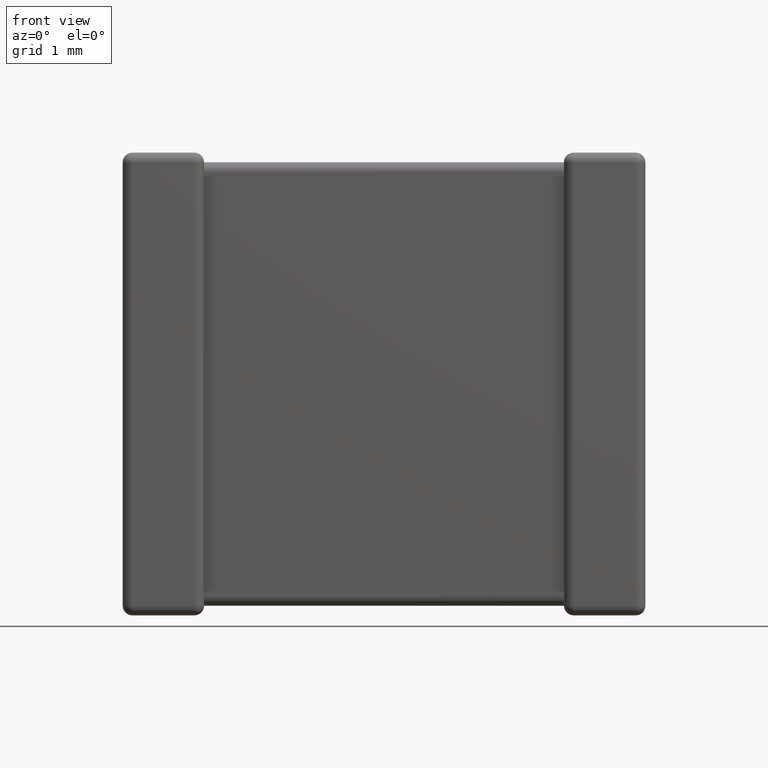
[diagram: clean part render]
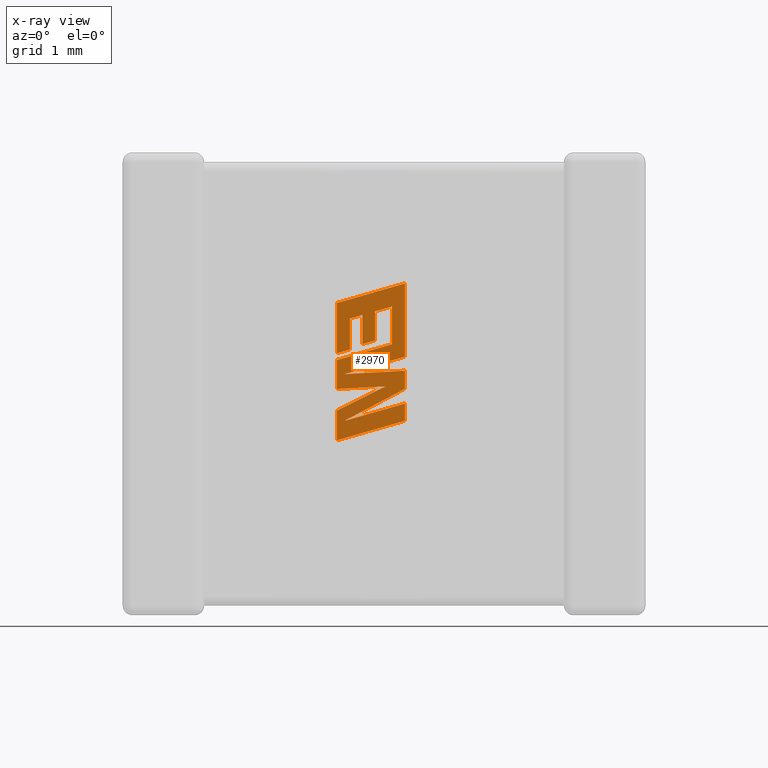
[diagram: x-ray — body ghosted, one internal face saturated and labeled with its STEP entity id]
A machine part, front view, then the same camera in x-ray: the body is ghosted and one INTERNAL B-rep face — a face not visible from any outside direction — is saturated and labeled: STEP entity #2970.
In plain terms, the highlighted planar face has unit normal (0, -1, 0).
Its self-contained STEP definition (entity closure, byte-faithful):
#72 = DIRECTION ( 'NONE',  ( 0.000000000000000000, 0.000000000000000000, 1.000000000000000000 ) ) ;
#74 = VECTOR ( 'NONE', #1894, 1000.000000000000000 ) ;
#94 = LINE ( 'NONE', #4412, #3383 ) ;
#162 = LINE ( 'NONE', #1605, #4665 ) ;
#164 = EDGE_CURVE ( 'NONE', #1717, #3765, #3443, .T. ) ;
#248 = EDGE_CURVE ( 'NONE', #1930, #4588, #1805, .T. ) ;
#261 = VERTEX_POINT ( 'NONE', #4265 ) ;
#313 = VECTOR ( 'NONE', #2080, 1000.000000000000227 ) ;
#323 = EDGE_CURVE ( 'NONE', #4036, #560, #1134, .T. ) ;
#368 = LINE ( 'NONE', #3974, #1432 ) ;
#476 = VERTEX_POINT ( 'NONE', #1944 ) ;
#490 = VERTEX_POINT ( 'NONE', #3371 ) ;
#502 = EDGE_CURVE ( 'NONE', #2121, #1244, #162, .T. ) ;
#522 = VECTOR ( 'NONE', #2669, 1000.000000000000000 ) ;
#560 = VERTEX_POINT ( 'NONE', #3109 ) ;
#596 = VERTEX_POINT ( 'NONE', #1799 ) ;
#769 = CARTESIAN_POINT ( 'NONE',  ( 2.651247545699367159, 2.437679999999999847, -1.937726998119464472 ) ) ;
#830 = CARTESIAN_POINT ( 'NONE',  ( 2.500140458105373664, 2.437679999999999847, -2.342335107203581845 ) ) ;
#838 = CARTESIAN_POINT ( 'NONE',  ( 2.651247545699367159, 2.437679999999999847, -1.937726998119464472 ) ) ;
#889 = ORIENTED_EDGE ( 'NONE', *, *, #3160, .F. ) ;
#928 = ORIENTED_EDGE ( 'NONE', *, *, #2841, .F. ) ;
#946 = CARTESIAN_POINT ( 'NONE',  ( 2.945662692117169357, 2.437679999999999847, -2.193576659344267377 ) ) ;
#949 = CARTESIAN_POINT ( 'NONE',  ( 3.142967740597625959, 2.437679999999999847, -2.236745285315902887 ) ) ;
#987 = AXIS2_PLACEMENT_3D ( 'NONE', #3700, #2187, #3333 ) ;
#1036 = LINE ( 'NONE', #1877, #3601 ) ;
#1052 = EDGE_CURVE ( 'NONE', #1952, #4036, #368, .T. ) ;
#1110 = CARTESIAN_POINT ( 'NONE',  ( 3.294000000000012029, 2.437679999999999847, -3.130290462645080929 ) ) ;
#1134 = LINE ( 'NONE', #1538, #2982 ) ;
#1144 = ORIENTED_EDGE ( 'NONE', *, *, #2048, .F. ) ;
#1241 = DIRECTION ( 'NONE',  ( -0.9617234872620624708, 0.000000000000000000, -0.2740217765953968376 ) ) ;
#1244 = VERTEX_POINT ( 'NONE', #2052 ) ;
#1279 = VECTOR ( 'NONE', #4342, 1000.000000000000227 ) ;
#1343 = CARTESIAN_POINT ( 'NONE',  ( 2.798905294973047297, 2.437679999999999847, -1.894761132410661242 ) ) ;
#1352 = CARTESIAN_POINT ( 'NONE',  ( 2.945662692117169357, 2.437679999999999847, -2.193576659344267377 ) ) ;
#1383 = LINE ( 'NONE', #2805, #4483 ) ;
#1418 = VERTEX_POINT ( 'NONE', #1940 ) ;
#1432 = VECTOR ( 'NONE', #2178, 1000.000000000000000 ) ;
#1455 = VERTEX_POINT ( 'NONE', #769 ) ;
#1533 = DIRECTION ( 'NONE',  ( 0.000000000000000000, 0.000000000000000000, 1.000000000000000000 ) ) ;
#1538 = CARTESIAN_POINT ( 'NONE',  ( 3.142967740597625959, 2.437679999999999847, -2.236745285315902887 ) ) ;
#1575 = EDGE_CURVE ( 'NONE', #596, #490, #2586, .T. ) ;
#1582 = VECTOR ( 'NONE', #2776, 1000.000000000000227 ) ;
#1591 = VECTOR ( 'NONE', #3467, 1000.000000000000000 ) ;
#1601 = LINE ( 'NONE', #4486, #1582 ) ;
#1605 = CARTESIAN_POINT ( 'NONE',  ( 3.294000000000012029, 2.437679999999999847, -3.130290462645080929 ) ) ;
#1642 = CARTESIAN_POINT ( 'NONE',  ( 2.500140458105373664, 2.437679999999999847, -3.010349538618765752 ) ) ;
#1656 = VECTOR ( 'NONE', #1533, 1000.000000000000000 ) ;
#1667 = DIRECTION ( 'NONE',  ( -0.9619530280415479195, 0.000000000000000000, -0.2732148821746301914 ) ) ;
#1696 = ORIENTED_EDGE ( 'NONE', *, *, #4614, .F. ) ;
#1703 = CARTESIAN_POINT ( 'NONE',  ( 2.583844240417757288, 2.437679999999999847, -3.132491859809354295 ) ) ;
#1710 = EDGE_CURVE ( 'NONE', #476, #2797, #1601, .T. ) ;
#1717 = VERTEX_POINT ( 'NONE', #1703 ) ;
#1760 = DIRECTION ( 'NONE',  ( 0.000000000000000000, 0.000000000000000000, 1.000000000000000000 ) ) ;
#1761 = CARTESIAN_POINT ( 'NONE',  ( 2.798905294973047297, 2.437679999999999847, -1.894761132410661242 ) ) ;
#1762 = CARTESIAN_POINT ( 'NONE',  ( 2.587247716295257405, 2.437679999999999847, -2.585577424164422045 ) ) ;
#1798 = CARTESIAN_POINT ( 'NONE',  ( 2.500140458105373664, 2.437679999999999847, -2.759594511516080928 ) ) ;
#1799 = CARTESIAN_POINT ( 'NONE',  ( 3.294000000000012029, 2.437679999999999847, -2.545961930456503541 ) ) ;
#1805 = LINE ( 'NONE', #3973, #3424 ) ;
#1816 = CARTESIAN_POINT ( 'NONE',  ( 2.500140458105373664, 2.437679999999999847, -2.421517818365376051 ) ) ;
#1841 = ORIENTED_EDGE ( 'NONE', *, *, #4294, .F. ) ;
#1852 = DIRECTION ( 'NONE',  ( 0.000000000000000000, 0.000000000000000000, -1.000000000000000000 ) ) ;
#1877 = CARTESIAN_POINT ( 'NONE',  ( 2.798905294973047297, 2.437679999999999847, -2.235494930349867460 ) ) ;
#1894 = DIRECTION ( 'NONE',  ( 0.000000000000000000, 0.000000000000000000, -1.000000000000000000 ) ) ;
#1906 = PLANE ( 'NONE',  #987 ) ;
#1927 = ORIENTED_EDGE ( 'NONE', *, *, #1052, .F. ) ;
#1930 = VERTEX_POINT ( 'NONE', #830 ) ;
#1940 = CARTESIAN_POINT ( 'NONE',  ( 2.798905294973047297, 2.437679999999999847, -2.235494930349867460 ) ) ;
#1944 = CARTESIAN_POINT ( 'NONE',  ( 3.067283914678573087, 2.437679999999999847, -2.729064943576893665 ) ) ;
#1952 = VERTEX_POINT ( 'NONE', #1816 ) ;
#1955 = VECTOR ( 'NONE', #3021, 1000.000000000000000 ) ;
#1997 = EDGE_CURVE ( 'NONE', #4035, #1418, #3080, .T. ) ;
#2018 = EDGE_CURVE ( 'NONE', #4575, #2264, #4554, .T. ) ;
#2048 = EDGE_CURVE ( 'NONE', #4588, #261, #3203, .T. ) ;
#2052 = CARTESIAN_POINT ( 'NONE',  ( 2.500140458105373664, 2.437679999999999847, -3.358530934435405069 ) ) ;
#2061 = CARTESIAN_POINT ( 'NONE',  ( 2.945662692117169357, 2.437679999999999847, -1.852891137658633225 ) ) ;
#2069 = EDGE_CURVE ( 'NONE', #2227, #1455, #4368, .T. ) ;
#2077 = VECTOR ( 'NONE', #2380, 999.9999999999998863 ) ;
#2080 = DIRECTION ( 'NONE',  ( 0.9984327301130250243, 0.000000000000000000, 0.05596501978067342647 ) ) ;
#2121 = VERTEX_POINT ( 'NONE', #1110 ) ;
#2155 = LINE ( 'NONE', #2061, #2182 ) ;
#2178 = DIRECTION ( 'NONE',  ( 0.9610853065513847993, 0.000000000000000000, 0.2762517575166369976 ) ) ;
#2182 = VECTOR ( 'NONE', #3595, 1000.000000000000000 ) ;
#2187 = DIRECTION ( 'NONE',  ( 0.000000000000000000, -1.000000000000000000, 0.000000000000000000 ) ) ;
#2188 = EDGE_LOOP ( 'NONE', ( #2631, #3554, #4160, #2208, #2487, #2956, #1841, #2362, #2339, #1144, #3010, #4369, #928, #3730, #2778, #3706, #889, #3691, #2605, #1927, #1696, #2867, #2218 ) ) ;
#2202 = CARTESIAN_POINT ( 'NONE',  ( 2.651247545699367159, 2.437679999999999847, -2.299417517748308715 ) ) ;
#2208 = ORIENTED_EDGE ( 'NONE', *, *, #164, .F. ) ;
#2218 = ORIENTED_EDGE ( 'NONE', *, *, #4315, .F. ) ;
#2220 = LINE ( 'NONE', #4422, #4073 ) ;
#2227 = VERTEX_POINT ( 'NONE', #1343 ) ;
#2264 = VERTEX_POINT ( 'NONE', #1762 ) ;
#2321 = EDGE_CURVE ( 'NONE', #1418, #2227, #1036, .T. ) ;
#2339 = ORIENTED_EDGE ( 'NONE', *, *, #2644, .F. ) ;
#2362 = ORIENTED_EDGE ( 'NONE', *, *, #2018, .F. ) ;
#2380 = DIRECTION ( 'NONE',  ( 0.9611542233438713501, 0.000000000000000000, 0.2760118818968482213 ) ) ;
#2445 = DIRECTION ( 'NONE',  ( 0.8958676361826827250, 0.000000000000000000, 0.4443210308329466063 ) ) ;
#2487 = ORIENTED_EDGE ( 'NONE', *, *, #3845, .F. ) ;
#2497 = LINE ( 'NONE', #3487, #313 ) ;
#2586 = LINE ( 'NONE', #3324, #74 ) ;
#2605 = ORIENTED_EDGE ( 'NONE', *, *, #323, .F. ) ;
#2615 = VECTOR ( 'NONE', #3746, 1000.000000000000114 ) ;
#2631 = ORIENTED_EDGE ( 'NONE', *, *, #3809, .F. ) ;
#2644 = EDGE_CURVE ( 'NONE', #261, #4575, #2823, .T. ) ;
#2669 = DIRECTION ( 'NONE',  ( -0.9611638845408968512, 0.000000000000000000, -0.2759782365590690567 ) ) ;
#2678 = CARTESIAN_POINT ( 'NONE',  ( 3.142967740597625959, 2.437679999999999847, -1.796673440335074368 ) ) ;
#2776 = DIRECTION ( 'NONE',  ( -0.9985542843760948362, 0.000000000000000000, -0.05375259206908062498 ) ) ;
#2778 = ORIENTED_EDGE ( 'NONE', *, *, #2321, .F. ) ;
#2797 = VERTEX_POINT ( 'NONE', #4415 ) ;
#2805 = CARTESIAN_POINT ( 'NONE',  ( 2.500140458105373664, 2.437679999999999847, -3.010349538618765752 ) ) ;
#2823 = LINE ( 'NONE', #4191, #1591 ) ;
#2841 = EDGE_CURVE ( 'NONE', #1455, #4343, #4487, .T. ) ;
#2843 = VERTEX_POINT ( 'NONE', #1642 ) ;
#2850 = EDGE_CURVE ( 'NONE', #560, #4645, #4109, .T. ) ;
#2867 = ORIENTED_EDGE ( 'NONE', *, *, #1710, .F. ) ;
#2902 = CARTESIAN_POINT ( 'NONE',  ( 2.500140458105373664, 2.437679999999999847, -1.755858281729635317 ) ) ;
#2922 = CARTESIAN_POINT ( 'NONE',  ( 2.500140458105373664, 2.437679999999999847, -3.358530934435405069 ) ) ;
#2948 = CARTESIAN_POINT ( 'NONE',  ( 2.500140458105373664, 2.437679999999999847, -1.755858281729635317 ) ) ;
#2956 = ORIENTED_EDGE ( 'NONE', *, *, #1575, .F. ) ;
#2966 = CARTESIAN_POINT ( 'NONE',  ( 2.945662692117169357, 2.437679999999999847, -1.852891137658633225 ) ) ;
#2970 = ADVANCED_FACE ( 'NONE', ( #3985 ), #1906, .T. ) ;
#2982 = VECTOR ( 'NONE', #72, 1000.000000000000000 ) ;
#3010 = ORIENTED_EDGE ( 'NONE', *, *, #248, .F. ) ;
#3021 = DIRECTION ( 'NONE',  ( 0.000000000000000000, 0.000000000000000000, -1.000000000000000000 ) ) ;
#3080 = LINE ( 'NONE', #946, #2615 ) ;
#3109 = CARTESIAN_POINT ( 'NONE',  ( 3.142967740597625959, 2.437679999999999847, -1.796673440335074368 ) ) ;
#3130 = CARTESIAN_POINT ( 'NONE',  ( 3.294000000000012029, 2.437679999999999847, -2.928558481708744665 ) ) ;
#3160 = EDGE_CURVE ( 'NONE', #4645, #4035, #2155, .T. ) ;
#3203 = LINE ( 'NONE', #2902, #4458 ) ;
#3277 = EDGE_CURVE ( 'NONE', #3765, #2121, #2220, .T. ) ;
#3298 = LINE ( 'NONE', #1798, #1656 ) ;
#3324 = CARTESIAN_POINT ( 'NONE',  ( 3.294000000000012029, 2.437679999999999847, -2.545961930456503541 ) ) ;
#3333 = DIRECTION ( 'NONE',  ( 0.000000000000000000, 0.000000000000000000, -1.000000000000000000 ) ) ;
#3371 = CARTESIAN_POINT ( 'NONE',  ( 3.294000000000012029, 2.437679999999999847, -2.757597784819791453 ) ) ;
#3383 = VECTOR ( 'NONE', #4037, 1000.000000000000114 ) ;
#3424 = VECTOR ( 'NONE', #1760, 1000.000000000000000 ) ;
#3443 = LINE ( 'NONE', #4498, #2077 ) ;
#3467 = DIRECTION ( 'NONE',  ( 0.000000000000000000, 0.000000000000000000, -1.000000000000000000 ) ) ;
#3487 = CARTESIAN_POINT ( 'NONE',  ( 2.587247716295257405, 2.437679999999999847, -2.585577424164422045 ) ) ;
#3524 = CARTESIAN_POINT ( 'NONE',  ( 2.651247545699367159, 2.437679999999999847, -2.299417517748308715 ) ) ;
#3554 = ORIENTED_EDGE ( 'NONE', *, *, #502, .F. ) ;
#3595 = DIRECTION ( 'NONE',  ( 0.000000000000000000, 0.000000000000000000, -1.000000000000000000 ) ) ;
#3601 = VECTOR ( 'NONE', #4049, 1000.000000000000000 ) ;
#3608 = LINE ( 'NONE', #2922, #4555 ) ;
#3691 = ORIENTED_EDGE ( 'NONE', *, *, #2850, .F. ) ;
#3700 = CARTESIAN_POINT ( 'NONE',  ( -2.033509805128725922, 2.437679999999999847, 0.01221870379636692643 ) ) ;
#3706 = ORIENTED_EDGE ( 'NONE', *, *, #1997, .F. ) ;
#3730 = ORIENTED_EDGE ( 'NONE', *, *, #2069, .F. ) ;
#3746 = DIRECTION ( 'NONE',  ( -0.9615454294334447871, 0.000000000000000000, -0.2746459304917006072 ) ) ;
#3765 = VERTEX_POINT ( 'NONE', #3130 ) ;
#3809 = EDGE_CURVE ( 'NONE', #1244, #2843, #3608, .T. ) ;
#3826 = DIRECTION ( 'NONE',  ( -0.9610674221107078363, 0.000000000000000000, -0.2763139702539094689 ) ) ;
#3845 = EDGE_CURVE ( 'NONE', #490, #1717, #94, .T. ) ;
#3973 = CARTESIAN_POINT ( 'NONE',  ( 2.500140458105373664, 2.437679999999999847, -2.342335107203581845 ) ) ;
#3974 = CARTESIAN_POINT ( 'NONE',  ( 2.500140458105373664, 2.437679999999999847, -2.421517818365376051 ) ) ;
#3985 = FACE_OUTER_BOUND ( 'NONE', #2188, .T. ) ;
#3991 = EDGE_CURVE ( 'NONE', #4343, #1930, #4259, .T. ) ;
#3994 = DIRECTION ( 'NONE',  ( 0.000000000000000000, 0.000000000000000000, 1.000000000000000000 ) ) ;
#3995 = VECTOR ( 'NONE', #1241, 1000.000000000000000 ) ;
#4035 = VERTEX_POINT ( 'NONE', #1352 ) ;
#4036 = VERTEX_POINT ( 'NONE', #949 ) ;
#4037 = DIRECTION ( 'NONE',  ( -0.8843386665637650301, 0.000000000000000000, -0.4668459304955136502 ) ) ;
#4049 = DIRECTION ( 'NONE',  ( 0.000000000000000000, 0.000000000000000000, 1.000000000000000000 ) ) ;
#4073 = VECTOR ( 'NONE', #1852, 1000.000000000000000 ) ;
#4109 = LINE ( 'NONE', #2678, #3995 ) ;
#4155 = CARTESIAN_POINT ( 'NONE',  ( 3.294000000000012029, 2.437679999999999847, -2.382648192138503429 ) ) ;
#4158 = VECTOR ( 'NONE', #1667, 999.9999999999998863 ) ;
#4160 = ORIENTED_EDGE ( 'NONE', *, *, #3277, .F. ) ;
#4191 = CARTESIAN_POINT ( 'NONE',  ( 3.294000000000012029, 2.437679999999999847, -2.241343597838670210 ) ) ;
#4203 = DIRECTION ( 'NONE',  ( 0.9610029908221285888, 0.000000000000000000, 0.2765379750249931101 ) ) ;
#4259 = LINE ( 'NONE', #3524, #4158 ) ;
#4265 = CARTESIAN_POINT ( 'NONE',  ( 3.294000000000012029, 2.437679999999999847, -1.527417462849347984 ) ) ;
#4294 = EDGE_CURVE ( 'NONE', #2264, #596, #2497, .T. ) ;
#4315 = EDGE_CURVE ( 'NONE', #2843, #476, #1383, .T. ) ;
#4342 = DIRECTION ( 'NONE',  ( -0.9601763114327565019, 0.000000000000000000, -0.2793947940878393488 ) ) ;
#4343 = VERTEX_POINT ( 'NONE', #2202 ) ;
#4368 = LINE ( 'NONE', #1761, #1279 ) ;
#4369 = ORIENTED_EDGE ( 'NONE', *, *, #3991, .F. ) ;
#4390 = CARTESIAN_POINT ( 'NONE',  ( 3.294000000000012029, 2.437679999999999847, -2.382648192138503429 ) ) ;
#4412 = CARTESIAN_POINT ( 'NONE',  ( 3.294000000000012029, 2.437679999999999847, -2.757597784819791453 ) ) ;
#4415 = CARTESIAN_POINT ( 'NONE',  ( 2.500140458105373664, 2.437679999999999847, -2.759594511516080928 ) ) ;
#4422 = CARTESIAN_POINT ( 'NONE',  ( 3.294000000000012029, 2.437679999999999847, -2.928558481708744665 ) ) ;
#4458 = VECTOR ( 'NONE', #4203, 1000.000000000000114 ) ;
#4483 = VECTOR ( 'NONE', #2445, 1000.000000000000114 ) ;
#4486 = CARTESIAN_POINT ( 'NONE',  ( 3.067283914678573087, 2.437679999999999847, -2.729064943576893665 ) ) ;
#4487 = LINE ( 'NONE', #838, #1955 ) ;
#4498 = CARTESIAN_POINT ( 'NONE',  ( 2.583844240417757288, 2.437679999999999847, -3.132491859809354295 ) ) ;
#4554 = LINE ( 'NONE', #4155, #522 ) ;
#4555 = VECTOR ( 'NONE', #3994, 1000.000000000000000 ) ;
#4575 = VERTEX_POINT ( 'NONE', #4390 ) ;
#4588 = VERTEX_POINT ( 'NONE', #2948 ) ;
#4614 = EDGE_CURVE ( 'NONE', #2797, #1952, #3298, .T. ) ;
#4645 = VERTEX_POINT ( 'NONE', #2966 ) ;
#4665 = VECTOR ( 'NONE', #3826, 1000.000000000000227 ) ;